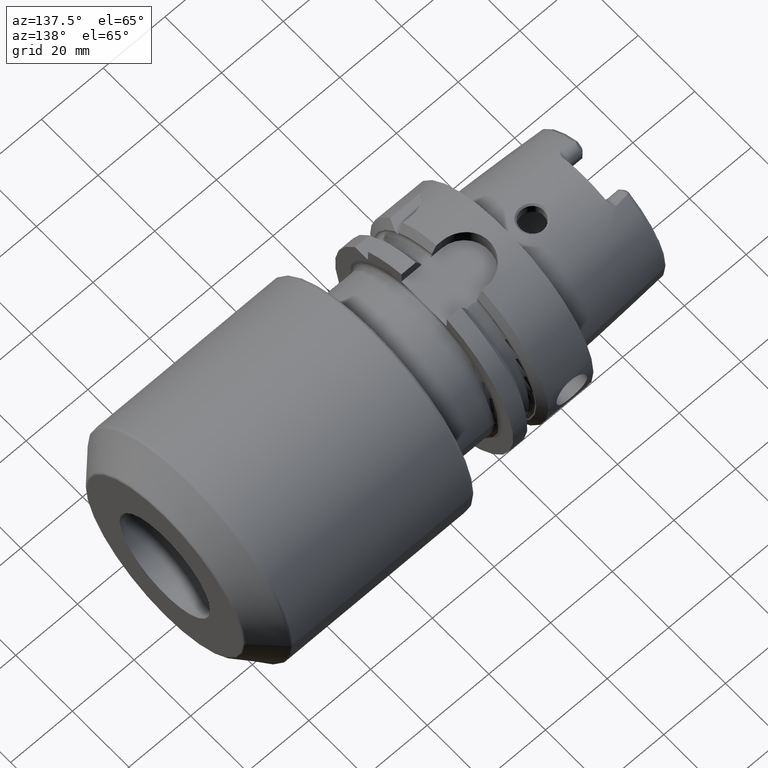
[diagram: clean part render]
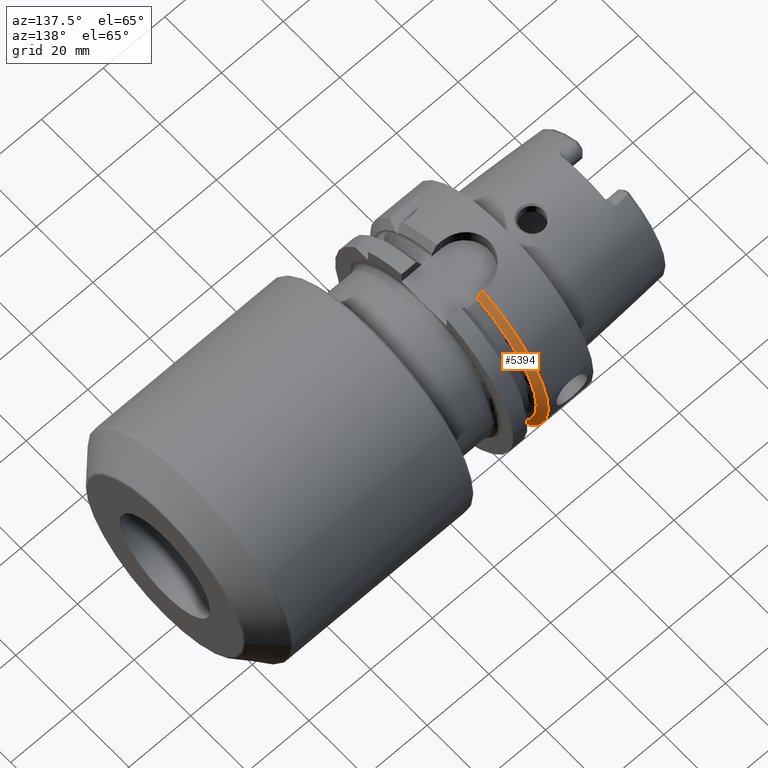
[diagram: same view with one face highlighted and labeled with its STEP entity id]
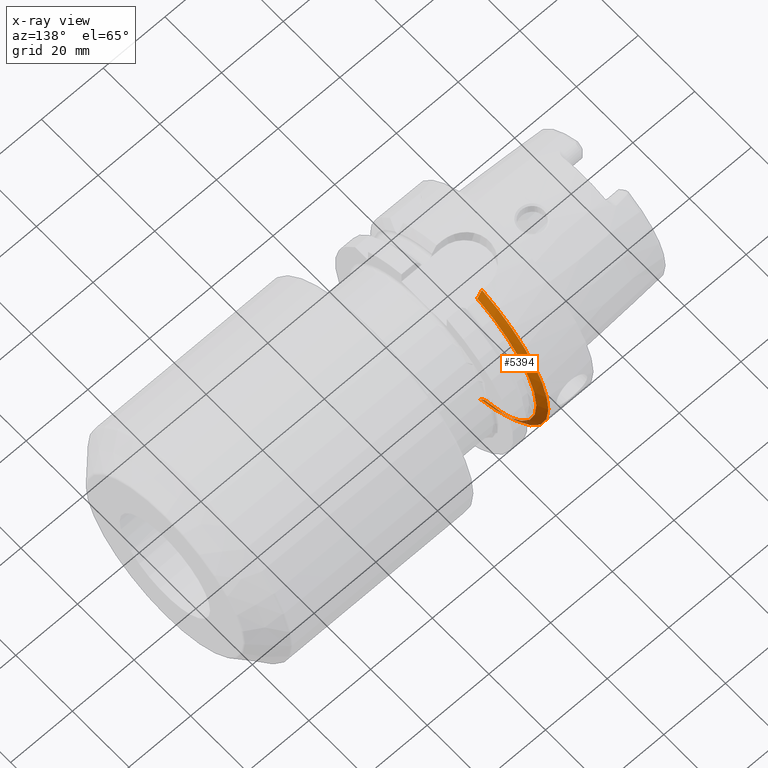
[diagram: x-ray of the same camera — body ghosted, the highlighted face saturated]
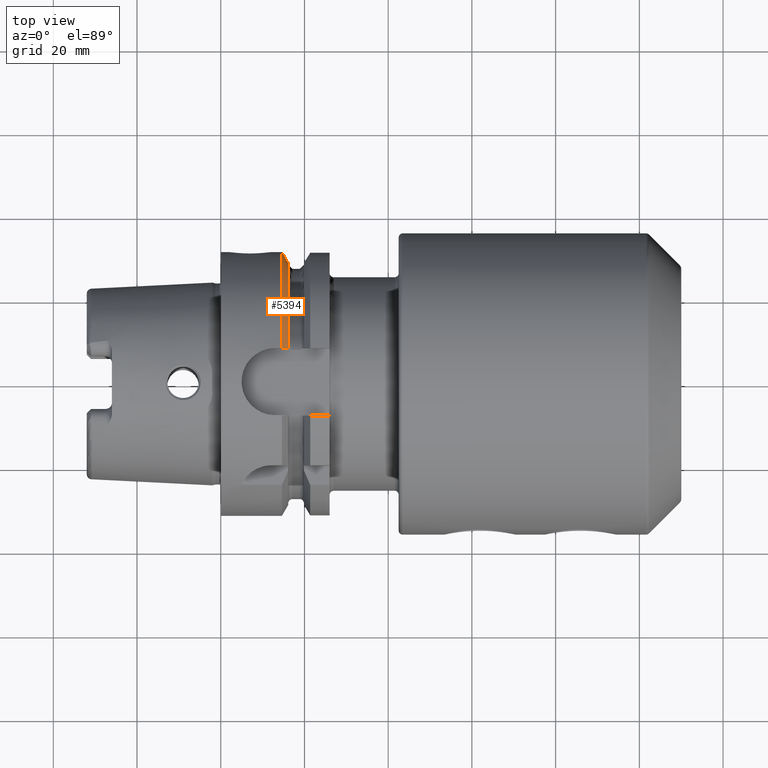
[diagram: same view with one face highlighted and labeled with its STEP entity id]
A machine part, auxiliary view. The second image highlights one B-rep face of the part: STEP entity #5394.
The next image is the same camera in x-ray: the body ghosted, the highlighted face saturated — about 5% of this face is hidden behind the body in this view.
A second angle (top view) of the same face is appended — the face is thin or edge-on in the first view.
In plain terms, the highlighted conical surface has half-angle 60 deg.
Its self-contained STEP definition (entity closure, byte-faithful):
#1141=CARTESIAN_POINT('',(1.462250092524E1,0.E0,0.E0));
#1142=DIRECTION('',(1.E0,0.E0,0.E0));
#1143=DIRECTION('',(0.E0,1.E0,0.E0));
#1144=AXIS2_PLACEMENT_3D('',#1141,#1142,#1143);
#1577=CARTESIAN_POINT('',(1.462250092524E1,9.0175E0,-3.018169467989E1));
#1578=CARTESIAN_POINT('',(1.479739328434E1,9.0175E0,-2.986554088755E1));
#1579=CARTESIAN_POINT('',(1.514187707501E1,9.0175E0,-2.924200119110E1));
#1580=CARTESIAN_POINT('',(1.564249057732E1,9.0175E0,-2.833337204728E1));
#1581=CARTESIAN_POINT('',(1.596590739145E1,9.0175E0,-2.774465116011E1));
#1582=CARTESIAN_POINT('',(1.6125E1,9.0175E0,-2.745461174016E1));
#1584=CARTESIAN_POINT('',(1.6125E1,0.E0,0.E0));
#1585=DIRECTION('',(1.E0,0.E0,0.E0));
#1586=DIRECTION('',(0.E0,3.120501867909E-1,-9.500656192726E-1));
#1587=AXIS2_PLACEMENT_3D('',#1584,#1585,#1586);
#1589=CARTESIAN_POINT('',(1.6125E1,8.0175E0,2.776311772483E1));
#1590=CARTESIAN_POINT('',(1.596543078404E1,8.0175E0,2.805079344433E1));
#1591=CARTESIAN_POINT('',(1.564137691625E1,8.0175E0,2.863431787984E1));
#1592=CARTESIAN_POINT('',(1.514073127837E1,8.0175E0,2.953380309393E1));
#1593=CARTESIAN_POINT('',(1.479690166789E1,8.0175E0,3.015023700722E1));
#1594=CARTESIAN_POINT('',(1.462250092524E1,8.0175E0,3.046259499370E1));
#1689=CARTESIAN_POINT('',(1.462250092524E1,0.E0,0.E0));
#1690=DIRECTION('',(1.E0,0.E0,0.E0));
#1691=DIRECTION('',(0.E0,2.862698412698E-1,-9.581490374568E-1));
#1692=AXIS2_PLACEMENT_3D('',#1689,#1690,#1691);
#3303=CARTESIAN_POINT('',(1.462250092524E1,3.15E1,0.E0));
#3304=VERTEX_POINT('',#3303);
#3383=CARTESIAN_POINT('',(1.462250092524E1,8.0175E0,3.046259499370E1));
#3384=VERTEX_POINT('',#3383);
#3389=CARTESIAN_POINT('',(1.6125E1,8.0175E0,2.776311772483E1));
#3391=VERTEX_POINT('',#3389);
#3409=CARTESIAN_POINT('',(1.462250092524E1,9.0175E0,-3.018169467989E1));
#3410=VERTEX_POINT('',#3409);
#3413=CARTESIAN_POINT('',(1.6125E1,9.0175E0,-2.745461174016E1));
#3415=VERTEX_POINT('',#3413);
#5381=CARTESIAN_POINT('',(1.537375046262E1,0.E0,0.E0));
#5382=DIRECTION('',(-1.E0,0.E0,0.E0));
#5383=DIRECTION('',(0.E0,1.E0,0.E0));
#5384=AXIS2_PLACEMENT_3D('',#5381,#5382,#5383);
#5385=CONICAL_SURFACE('',#5384,3.019879763210E1,6.E1);
#5386=ORIENTED_EDGE('',*,*,#4962,.T.);
#5387=ORIENTED_EDGE('',*,*,#5301,.T.);
#5388=ORIENTED_EDGE('',*,*,#5343,.T.);
#5389=ORIENTED_EDGE('',*,*,#4844,.F.);
#5391=ORIENTED_EDGE('',*,*,#5390,.F.);
#5392=EDGE_LOOP('',(#5386,#5387,#5388,#5389,#5391));
#5393=FACE_OUTER_BOUND('',#5392,.F.);
#5394=ADVANCED_FACE('',(#5393),#5385,.T.);
#1145=CIRCLE('',#1144,3.15E1);
#1583=B_SPLINE_CURVE_WITH_KNOTS('',3,(#1577,#1578,#1579,#1580,#1581,#1582),
.UNSPECIFIED.,.F.,.F.,(4,1,1,4),(0.E0,3.333333333333E-1,6.666666666667E-1,1.E0),
.UNSPECIFIED.);
#1588=CIRCLE('',#1587,2.889759526419E1);
#1595=B_SPLINE_CURVE_WITH_KNOTS('',3,(#1589,#1590,#1591,#1592,#1593,#1594),
.UNSPECIFIED.,.F.,.F.,(4,1,1,4),(0.E0,3.333333333333E-1,6.666666666667E-1,1.E0),
.UNSPECIFIED.);
#1693=CIRCLE('',#1692,3.15E1);
#4844=EDGE_CURVE('',#3304,#3384,#1145,.T.);
#4962=EDGE_CURVE('',#3410,#3415,#1583,.T.);
#5301=EDGE_CURVE('',#3415,#3391,#1588,.T.);
#5343=EDGE_CURVE('',#3391,#3384,#1595,.T.);
#5390=EDGE_CURVE('',#3410,#3304,#1693,.T.);